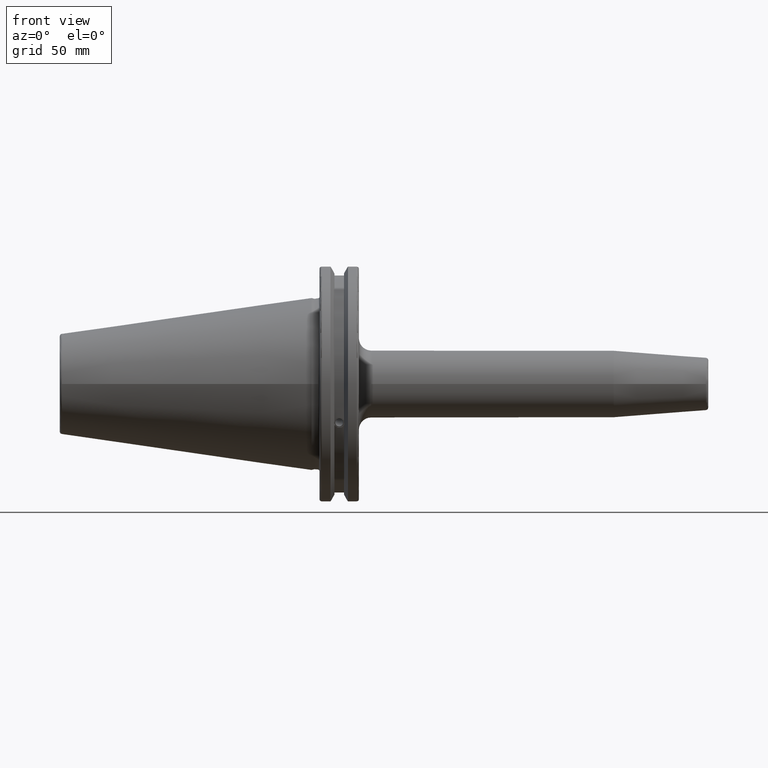
[diagram: clean part render]
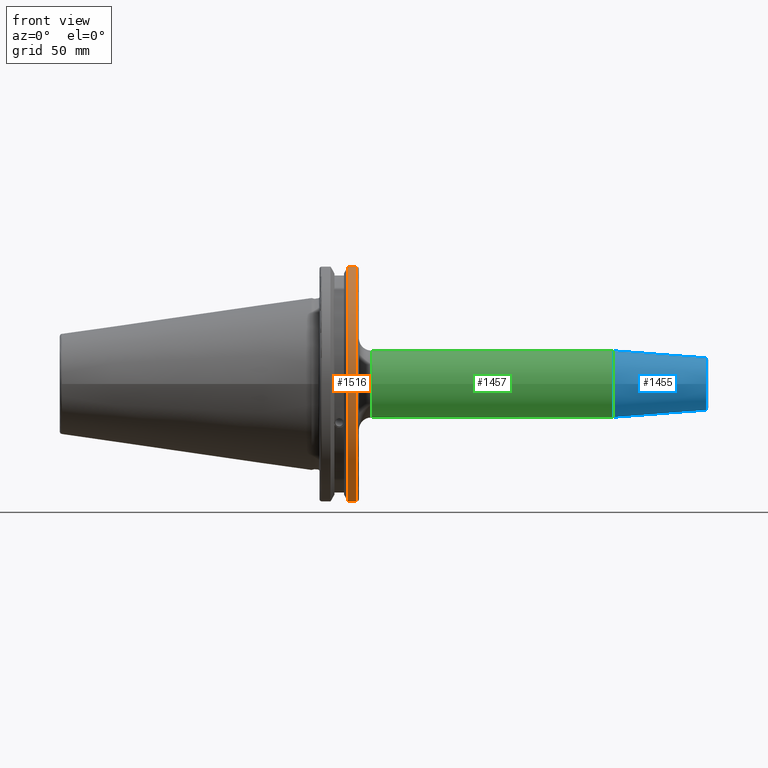
[diagram: same view with three faces highlighted in distinct colors, each labeled with its STEP entity id]
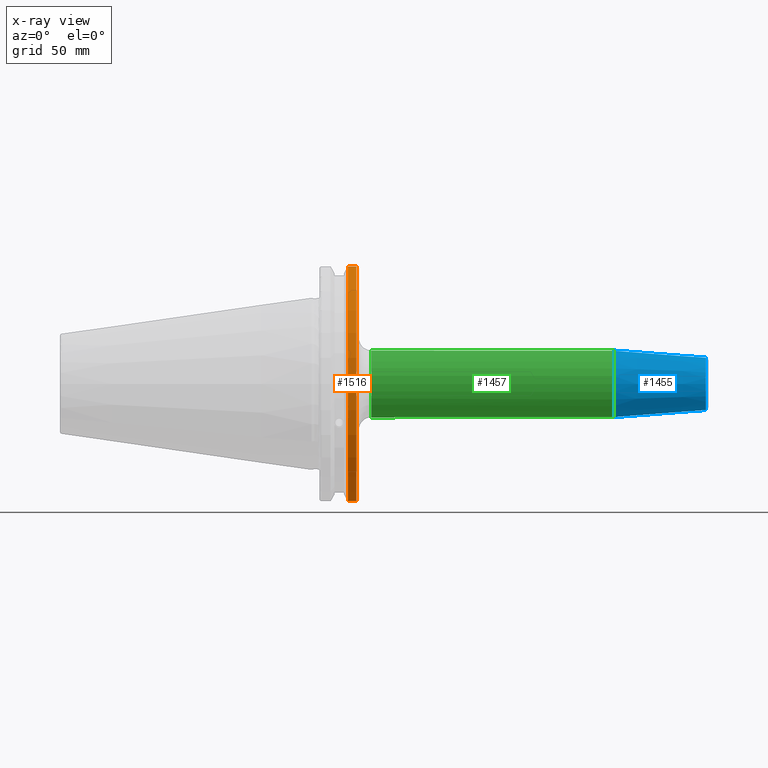
[diagram: x-ray of the same camera — body ghosted, the three highlighted faces saturated]
A machine part, front view with three faces highlighted in distinct colors.
The next image is the same camera in x-ray (body ghosted, the three faces saturated) — at least one of them is partly hidden behind the body in this view.
Their STEP definitions:

[orange] entity #1516 — the highlighted cylindrical surface (partial cylindrical patch) has radius 49.2125 mm, axis along (1, 0, 0).
#167=LINE('',#3029,#259);
#168=LINE('',#3031,#260);
#259=VECTOR('',#2073,10.);
#260=VECTOR('',#2076,10.);
#288=CYLINDRICAL_SURFACE('',#1692,49.2125);
#417=FACE_OUTER_BOUND('',#521,.T.);
#521=EDGE_LOOP('',(#1351,#1352,#1353,#1354));
#575=CIRCLE('',#1617,49.2125);
#599=CIRCLE('',#1664,49.2125);
#678=VERTEX_POINT('',#2513);
#679=VERTEX_POINT('',#2517);
#739=VERTEX_POINT('',#2872);
#740=VERTEX_POINT('',#2881);
#846=EDGE_CURVE('',#679,#678,#575,.T.);
#927=EDGE_CURVE('',#739,#740,#599,.T.);
#973=EDGE_CURVE('',#740,#678,#167,.T.);
#974=EDGE_CURVE('',#679,#739,#168,.T.);
#1351=ORIENTED_EDGE('',*,*,#927,.F.);
#1352=ORIENTED_EDGE('',*,*,#974,.F.);
#1353=ORIENTED_EDGE('',*,*,#846,.T.);
#1354=ORIENTED_EDGE('',*,*,#973,.F.);
#1516=ADVANCED_FACE('',(#417),#288,.T.);
#1617=AXIS2_PLACEMENT_3D('',#2518,#1869,#1870);
#1664=AXIS2_PLACEMENT_3D('',#2882,#1994,#1995);
#1692=AXIS2_PLACEMENT_3D('',#3030,#2074,#2075);
#1869=DIRECTION('center_axis',(1.,0.,0.));
#1870=DIRECTION('ref_axis',(0.,0.,-1.));
#1994=DIRECTION('center_axis',(1.,0.,0.));
#1995=DIRECTION('ref_axis',(0.,-1.,1.60812264967664E-16));
#2073=DIRECTION('',(-1.,0.,0.));
#2074=DIRECTION('center_axis',(1.,0.,0.));
#2075=DIRECTION('ref_axis',(0.,-1.,1.22464679914735E-16));
#2076=DIRECTION('',(1.,0.,0.));
#2513=CARTESIAN_POINT('',(14.6602090340487,-13.4317035994433,-47.3440544806494));
#2517=CARTESIAN_POINT('',(14.6602090340487,-13.4317035994433,47.3440544806494));
#2518=CARTESIAN_POINT('Origin',(14.6602090340487,0.,0.));
#2872=CARTESIAN_POINT('',(18.05,-13.4317035994433,47.3440544806494));
#2881=CARTESIAN_POINT('',(18.05,-13.4317035994433,-47.3440544806494));
#2882=CARTESIAN_POINT('Origin',(18.05,0.,0.));
#3029=CARTESIAN_POINT('',(16.8551045170244,-13.4317035994433,-47.3440544806494));
#3030=CARTESIAN_POINT('Origin',(16.8551045170244,0.,0.));
#3031=CARTESIAN_POINT('',(16.8551045170244,-13.4317035994433,47.3440544806494));

[blue] entity #1455 — the highlighted conical surface has half-angle 4.5 deg.
#71=CONICAL_SURFACE('',#1573,12.,0.0785398163397444);
#85=LINE('',#2170,#177);
#177=VECTOR('',#1755,12.);
#356=FACE_OUTER_BOUND('',#443,.T.);
#443=EDGE_LOOP('',(#1011,#1012,#1013,#1014,#1015));
#551=CIRCLE('',#1571,10.5725268420749);
#552=CIRCLE('',#1572,10.5725268420749);
#553=CIRCLE('',#1574,13.5);
#625=VERTEX_POINT('',#2163);
#626=VERTEX_POINT('',#2165);
#627=VERTEX_POINT('',#2169);
#778=EDGE_CURVE('',#625,#626,#551,.T.);
#779=EDGE_CURVE('',#626,#625,#552,.T.);
#780=EDGE_CURVE('',#626,#627,#85,.T.);
#781=EDGE_CURVE('',#627,#627,#553,.T.);
#1011=ORIENTED_EDGE('',*,*,#779,.F.);
#1012=ORIENTED_EDGE('',*,*,#780,.T.);
#1013=ORIENTED_EDGE('',*,*,#781,.T.);
#1014=ORIENTED_EDGE('',*,*,#780,.F.);
#1015=ORIENTED_EDGE('',*,*,#778,.F.);
#1455=ADVANCED_FACE('',(#356),#71,.T.);
#1571=AXIS2_PLACEMENT_3D('',#2166,#1749,#1750);
#1572=AXIS2_PLACEMENT_3D('',#2167,#1751,#1752);
#1573=AXIS2_PLACEMENT_3D('',#2168,#1753,#1754);
#1574=AXIS2_PLACEMENT_3D('',#2171,#1756,#1757);
#1749=DIRECTION('center_axis',(1.,0.,0.));
#1750=DIRECTION('ref_axis',(0.,-1.,3.06161699786838E-17));
#1751=DIRECTION('center_axis',(1.,0.,0.));
#1752=DIRECTION('ref_axis',(0.,-1.,3.06161699786838E-17));
#1753=DIRECTION('center_axis',(-1.,0.,0.));
#1754=DIRECTION('ref_axis',(0.,1.,0.));
#1755=DIRECTION('',(-0.996917333733128,-0.0784590957278445,-9.60846804471006E-18));
#1756=DIRECTION('center_axis',(1.,0.,0.));
#1757=DIRECTION('ref_axis',(0.,0.,-1.));
#2163=CARTESIAN_POINT('',(159.078459095728,-1.29476111560465E-15,10.5725268420749));
#2165=CARTESIAN_POINT('',(159.078459095728,-10.5725268420749,-1.29476111560465E-15));
#2166=CARTESIAN_POINT('Origin',(159.078459095728,0.,-1.61845139450582E-15));
#2167=CARTESIAN_POINT('Origin',(159.078459095728,0.,-1.61845139450582E-15));
#2168=CARTESIAN_POINT('Origin',(140.940692895738,0.,0.));
#2169=CARTESIAN_POINT('',(121.881385791476,-13.5,-1.65327317884893E-15));
#2170=CARTESIAN_POINT('',(140.940692895738,-12.,-1.46957615897682E-15));
#2171=CARTESIAN_POINT('Origin',(121.881385791476,0.,0.));

[green] entity #1457 — the highlighted cylindrical surface (bore or boss wall) has radius 13.5 mm, axis along (1, 0, 0).
#86=LINE('',#2181,#178);
#178=VECTOR('',#1770,13.5);
#269=CYLINDRICAL_SURFACE('',#1580,13.5);
#358=FACE_OUTER_BOUND('',#445,.T.);
#445=EDGE_LOOP('',(#1021,#1022,#1023,#1024,#1025));
#553=CIRCLE('',#1574,13.5);
#554=CIRCLE('',#1576,13.5);
#557=CIRCLE('',#1579,13.5);
#627=VERTEX_POINT('',#2169);
#628=VERTEX_POINT('',#2173);
#629=VERTEX_POINT('',#2174);
#781=EDGE_CURVE('',#627,#627,#553,.T.);
#782=EDGE_CURVE('',#628,#629,#554,.T.);
#785=EDGE_CURVE('',#629,#628,#557,.T.);
#786=EDGE_CURVE('',#627,#628,#86,.T.);
#1021=ORIENTED_EDGE('',*,*,#781,.F.);
#1022=ORIENTED_EDGE('',*,*,#786,.T.);
#1023=ORIENTED_EDGE('',*,*,#785,.F.);
#1024=ORIENTED_EDGE('',*,*,#782,.F.);
#1025=ORIENTED_EDGE('',*,*,#786,.F.);
#1457=ADVANCED_FACE('',(#358),#269,.T.);
#1574=AXIS2_PLACEMENT_3D('',#2171,#1756,#1757);
#1576=AXIS2_PLACEMENT_3D('',#2175,#1760,#1761);
#1579=AXIS2_PLACEMENT_3D('',#2179,#1766,#1767);
#1580=AXIS2_PLACEMENT_3D('',#2180,#1768,#1769);
#1756=DIRECTION('center_axis',(1.,0.,0.));
#1757=DIRECTION('ref_axis',(0.,0.,-1.));
#1760=DIRECTION('center_axis',(-1.,0.,0.));
#1761=DIRECTION('ref_axis',(0.,-1.,-1.22464679914735E-16));
#1766=DIRECTION('center_axis',(-1.,0.,0.));
#1767=DIRECTION('ref_axis',(0.,-1.,-1.22464679914735E-16));
#1768=DIRECTION('center_axis',(1.,0.,0.));
#1769=DIRECTION('ref_axis',(0.,1.,0.));
#1770=DIRECTION('',(-1.,0.,0.));
#2169=CARTESIAN_POINT('',(121.881385791476,-13.5,-1.65327317884893E-15));
#2171=CARTESIAN_POINT('Origin',(121.881385791476,0.,0.));
#2173=CARTESIAN_POINT('',(24.05,-13.5,-1.65327317884893E-15));
#2174=CARTESIAN_POINT('',(24.05,-1.65327317884893E-15,-13.5));
#2175=CARTESIAN_POINT('Origin',(24.05,0.,0.));
#2179=CARTESIAN_POINT('Origin',(24.05,0.,0.));
#2180=CARTESIAN_POINT('Origin',(70.4656928957378,0.,0.));
#2181=CARTESIAN_POINT('',(70.4656928957378,-13.5,-1.65327317884893E-15));